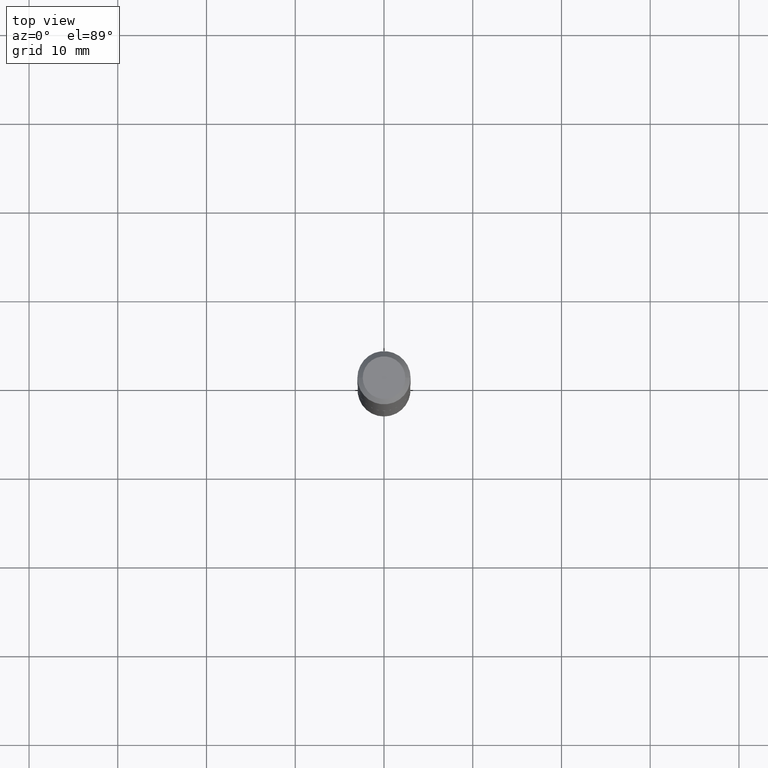
[diagram: clean part render]
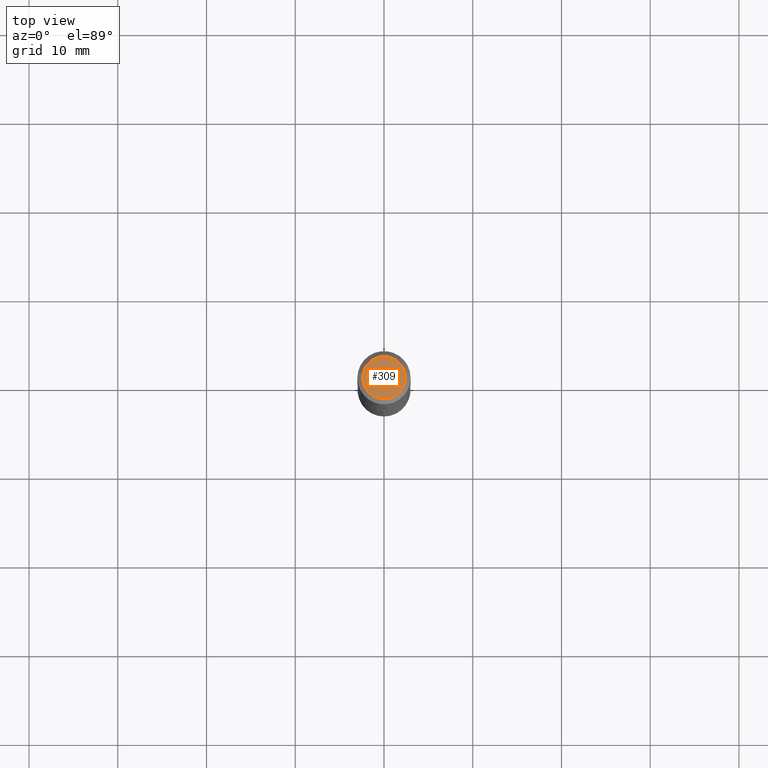
[diagram: same view with one face highlighted and labeled with its STEP entity id]
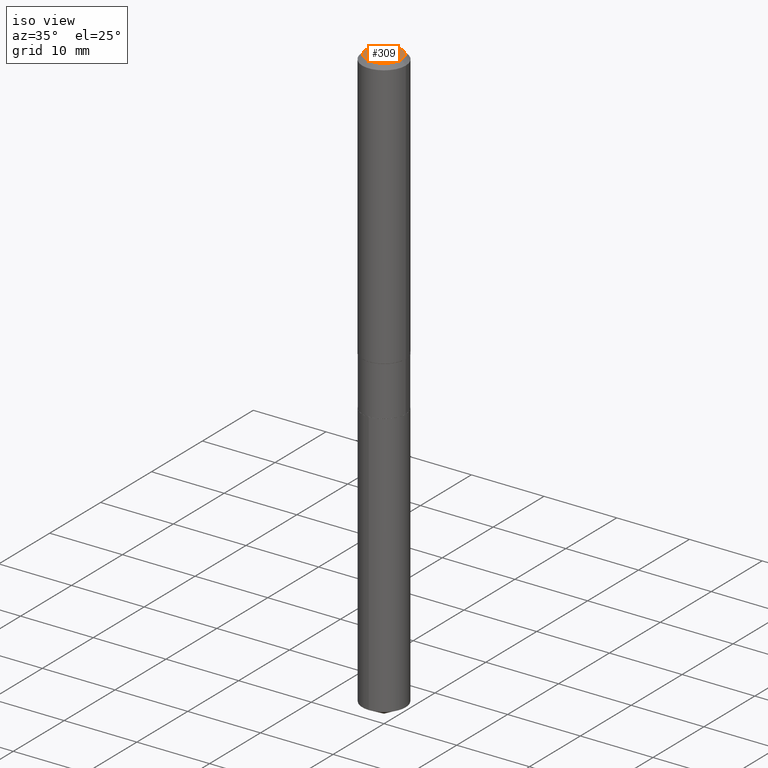
[diagram: same view with one face highlighted and labeled with its STEP entity id]
A machine part, top view. The second image highlights one B-rep face of the part: STEP entity #309.
A second angle (iso view) of the same face is appended — the face is thin or edge-on in the first view.
In plain terms, the highlighted planar face has unit normal (0, -0, -1).
Its self-contained STEP definition (entity closure, byte-faithful):
#14 = EDGE_CURVE ( 'NONE', #66, #247, #209, .T. ) ;
#41 = CARTESIAN_POINT ( 'NONE',  ( -0.09447999999999998066, 7.009847083995354710E-16, -2.700101262760559836E-17 ) ) ;
#66 = VERTEX_POINT ( 'NONE', #287 ) ;
#119 = EDGE_LOOP ( 'NONE', ( #483, #358 ) ) ;
#139 = AXIS2_PLACEMENT_3D ( 'NONE', #212, #376, #342 ) ;
#146 = DIRECTION ( 'NONE',  ( -2.445468806185136597E-29, 3.491481338843145583E-15, 1.000000000000000000 ) ) ;
#193 = DIRECTION ( 'NONE',  ( -1.000000000000000000, 6.982962677686265922E-15, -4.876176775795935793E-29 ) ) ;
#209 = CIRCLE ( 'NONE', #139, 0.09447999999999998066 ) ;
#212 = CARTESIAN_POINT ( 'NONE',  ( 6.603013411620882309E-46, -9.427353171913646324E-32, -2.700101262760083747E-17 ) ) ;
#247 = VERTEX_POINT ( 'NONE', #41 ) ;
#287 = CARTESIAN_POINT ( 'NONE',  ( 0.09447999999999998066, -7.704367267948738690E-16, -2.700101262759583929E-17 ) ) ;
#309 = ADVANCED_FACE ( 'NONE', ( #312 ), #348, .F. ) ;
#311 = DIRECTION ( 'NONE',  ( 1.000000000000000000, -6.982962677686267499E-15, 4.875432709231658792E-29 ) ) ;
#312 = FACE_OUTER_BOUND ( 'NONE', #119, .T. ) ;
#328 = AXIS2_PLACEMENT_3D ( 'NONE', #460, #146, #311 ) ;
#336 = EDGE_CURVE ( 'NONE', #247, #66, #469, .T. ) ;
#342 = DIRECTION ( 'NONE',  ( 1.000000000000000000, -6.982962677686267499E-15, 4.875432709231658792E-29 ) ) ;
#348 = PLANE ( 'NONE',  #459 ) ;
#358 = ORIENTED_EDGE ( 'NONE', *, *, #14, .T. ) ;
#376 = DIRECTION ( 'NONE',  ( -2.445468806185136597E-29, 3.491481338843145583E-15, 1.000000000000000000 ) ) ;
#393 = CARTESIAN_POINT ( 'NONE',  ( 3.301506705810441154E-46, -4.713676585956823162E-32, -1.350050631380041873E-17 ) ) ;
#459 = AXIS2_PLACEMENT_3D ( 'NONE', #393, #463, #193 ) ;
#460 = CARTESIAN_POINT ( 'NONE',  ( 6.603013411620882309E-46, -9.427353171913646324E-32, -2.700101262760083747E-17 ) ) ;
#463 = DIRECTION ( 'NONE',  ( 2.438088387897960049E-29, -3.491481338843145188E-15, -1.000000000000000000 ) ) ;
#469 = CIRCLE ( 'NONE', #328, 0.09447999999999998066 ) ;
#483 = ORIENTED_EDGE ( 'NONE', *, *, #336, .T. ) ;